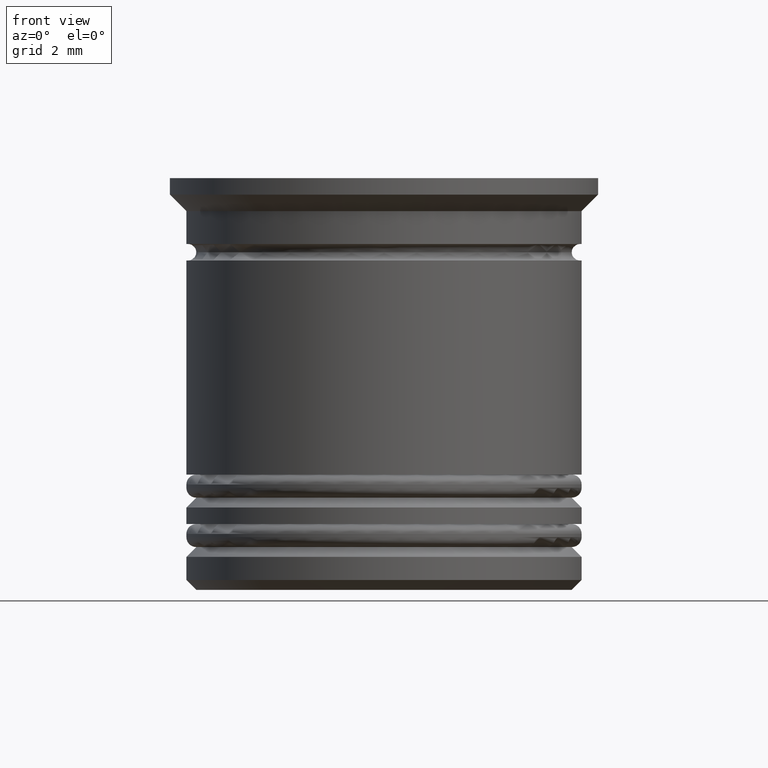
[diagram: clean part render]
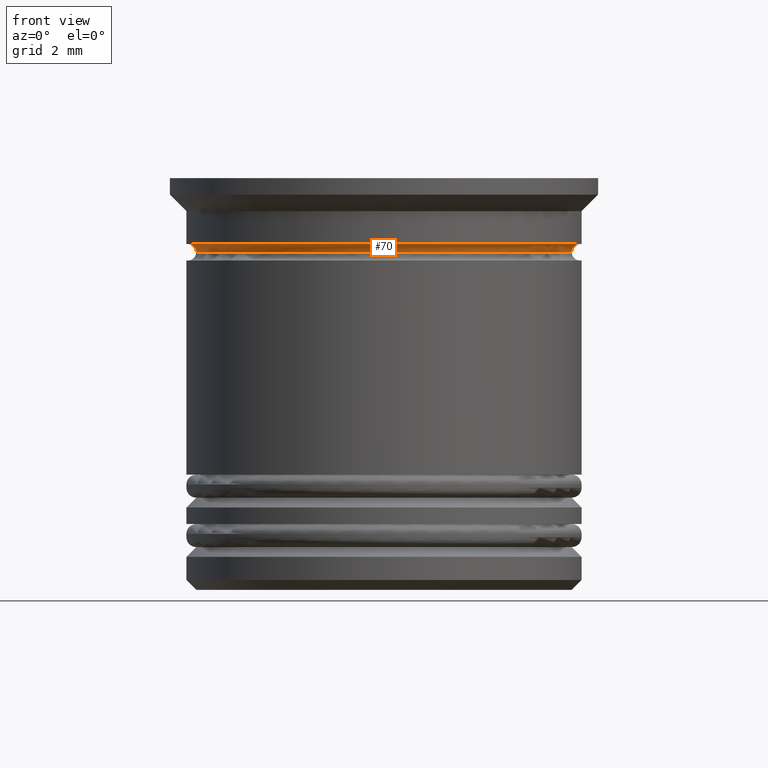
[diagram: same view with one face highlighted and labeled with its STEP entity id]
A machine part, front view. The second image highlights one B-rep face of the part: STEP entity #70.
In plain terms, the highlighted toroidal blend (fillet) surface has major radius 5.95 mm and minor (blend) radius 0.25 mm.
Its self-contained STEP definition (entity closure, byte-faithful):
#20 = EDGE_CURVE ( 'NONE', #1241, #1867, #534, .T. ) ;
#58 = CARTESIAN_POINT ( 'NONE',  ( -5.699999999999999289, 6.980486755139912122E-16, -2.250000000000000444 ) ) ;
#67 = CARTESIAN_POINT ( 'NONE',  ( 5.699999999999999289, 0.000000000000000000, -2.250000000000000444 ) ) ;
#70 = ADVANCED_FACE ( 'NONE', ( #1442 ), #1937, .F. ) ;
#87 = DIRECTION ( 'NONE',  ( 1.000000000000000000, 0.000000000000000000, 0.000000000000000000 ) ) ;
#96 = DIRECTION ( 'NONE',  ( -0.000000000000000000, -0.000000000000000000, 1.000000000000000000 ) ) ;
#110 = AXIS2_PLACEMENT_3D ( 'NONE', #255, #96, #87 ) ;
#178 = AXIS2_PLACEMENT_3D ( 'NONE', #1424, #1230, #1745 ) ;
#255 = CARTESIAN_POINT ( 'NONE',  ( 0.000000000000000000, 0.000000000000000000, -2.250000000000000444 ) ) ;
#259 = CARTESIAN_POINT ( 'NONE',  ( 0.000000000000000000, 0.000000000000000000, -2.250000000000000444 ) ) ;
#395 = VERTEX_POINT ( 'NONE', #58 ) ;
#410 = EDGE_CURVE ( 'NONE', #1241, #395, #1902, .T. ) ;
#534 = CIRCLE ( 'NONE', #685, 5.949999999999999289 ) ;
#568 = CIRCLE ( 'NONE', #1749, 0.2500000000000002220 ) ;
#575 = DIRECTION ( 'NONE',  ( 1.000000000000000000, 0.000000000000000000, 0.000000000000000000 ) ) ;
#577 = EDGE_CURVE ( 'NONE', #1867, #1111, #568, .T. ) ;
#624 = ORIENTED_EDGE ( 'NONE', *, *, #577, .F. ) ;
#673 = ORIENTED_EDGE ( 'NONE', *, *, #1250, .T. ) ;
#685 = AXIS2_PLACEMENT_3D ( 'NONE', #688, #1917, #1264 ) ;
#688 = CARTESIAN_POINT ( 'NONE',  ( 0.000000000000000000, 0.000000000000000000, -2.000000000000000000 ) ) ;
#1011 = CARTESIAN_POINT ( 'NONE',  ( -5.949999999999999289, 7.286648454926750979E-16, -2.000000000000000000 ) ) ;
#1111 = VERTEX_POINT ( 'NONE', #67 ) ;
#1132 = EDGE_LOOP ( 'NONE', ( #1153, #673, #624, #1188 ) ) ;
#1153 = ORIENTED_EDGE ( 'NONE', *, *, #410, .T. ) ;
#1184 = DIRECTION ( 'NONE',  ( 0.000000000000000000, -1.000000000000000000, 0.000000000000000000 ) ) ;
#1188 = ORIENTED_EDGE ( 'NONE', *, *, #20, .F. ) ;
#1230 = DIRECTION ( 'NONE',  ( 1.224646799147353207E-16, 1.000000000000000000, 0.000000000000000000 ) ) ;
#1241 = VERTEX_POINT ( 'NONE', #1011 ) ;
#1250 = EDGE_CURVE ( 'NONE', #395, #1111, #1388, .T. ) ;
#1264 = DIRECTION ( 'NONE',  ( 1.000000000000000000, 0.000000000000000000, 0.000000000000000000 ) ) ;
#1388 = CIRCLE ( 'NONE', #1822, 5.699999999999999289 ) ;
#1424 = CARTESIAN_POINT ( 'NONE',  ( -5.949999999999999289, 7.286648454926750979E-16, -2.250000000000000444 ) ) ;
#1442 = FACE_OUTER_BOUND ( 'NONE', #1132, .T. ) ;
#1496 = DIRECTION ( 'NONE',  ( -0.000000000000000000, -0.000000000000000000, 1.000000000000000000 ) ) ;
#1602 = CARTESIAN_POINT ( 'NONE',  ( 5.949999999999999289, 0.000000000000000000, -2.000000000000000000 ) ) ;
#1745 = DIRECTION ( 'NONE',  ( -1.000000000000000000, 1.224646799147353454E-16, 0.000000000000000000 ) ) ;
#1749 = AXIS2_PLACEMENT_3D ( 'NONE', #1792, #1184, #1932 ) ;
#1792 = CARTESIAN_POINT ( 'NONE',  ( 5.949999999999999289, 0.000000000000000000, -2.250000000000000444 ) ) ;
#1822 = AXIS2_PLACEMENT_3D ( 'NONE', #259, #1496, #575 ) ;
#1867 = VERTEX_POINT ( 'NONE', #1602 ) ;
#1902 = CIRCLE ( 'NONE', #178, 0.2500000000000002220 ) ;
#1917 = DIRECTION ( 'NONE',  ( -0.000000000000000000, -0.000000000000000000, 1.000000000000000000 ) ) ;
#1932 = DIRECTION ( 'NONE',  ( 0.000000000000000000, 0.000000000000000000, -1.000000000000000000 ) ) ;
#1937 = TOROIDAL_SURFACE ( 'NONE', #110, 5.949999999999999289, 0.2500000000000002220 ) ;